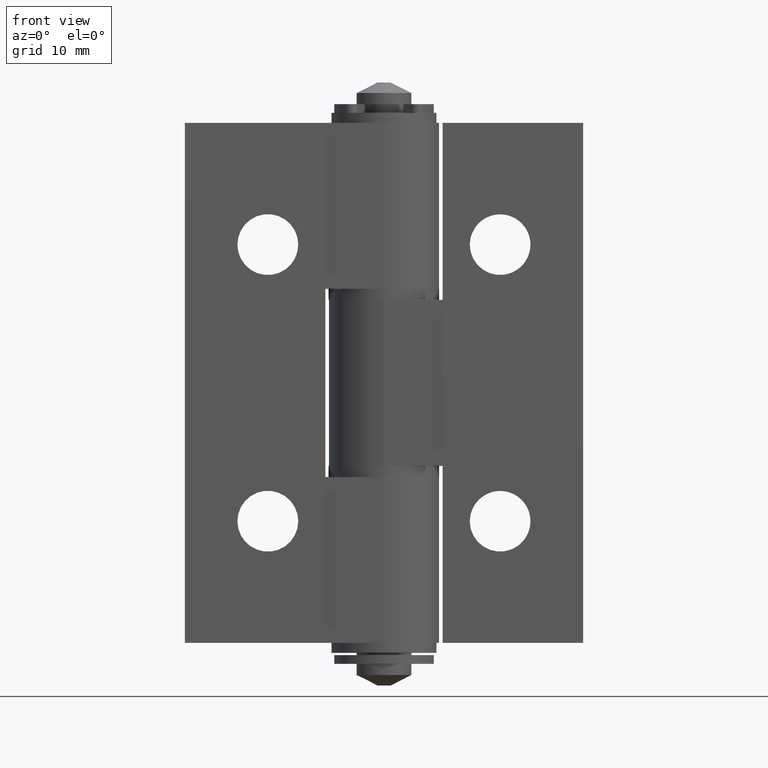
[diagram: clean part render]
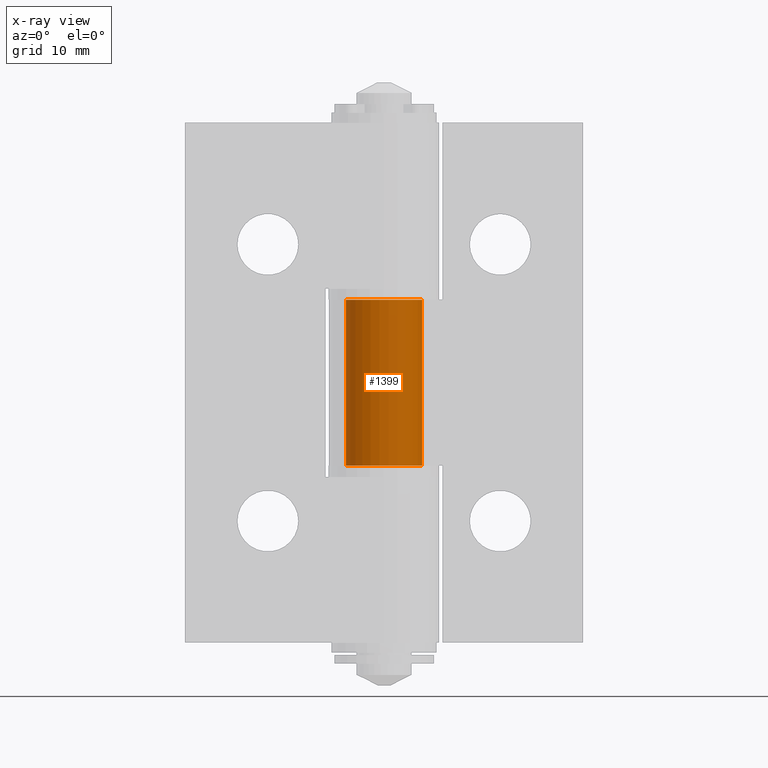
[diagram: x-ray — body ghosted, one internal face saturated and labeled with its STEP entity id]
A machine part, front view, then the same camera in x-ray: the body is ghosted and one INTERNAL B-rep face — a face not visible from any outside direction — is saturated and labeled: STEP entity #1399.
In plain terms, the highlighted cylindrical surface (bore or boss wall) has radius 3.45 mm, axis along (0, 0, 1).
Its self-contained STEP definition (entity closure, byte-faithful):
#93=CYLINDRICAL_SURFACE('',#1519,3.45);
#137=FACE_BOUND('',#287,.T.);
#182=FACE_OUTER_BOUND('',#286,.T.);
#286=EDGE_LOOP('',(#1104));
#287=EDGE_LOOP('',(#1105));
#370=CIRCLE('',#1497,3.45);
#372=CIRCLE('',#1500,3.45);
#677=VERTEX_POINT('',#2197);
#682=VERTEX_POINT('',#2208);
#820=EDGE_CURVE('',#677,#677,#370,.T.);
#825=EDGE_CURVE('',#682,#682,#372,.T.);
#1104=ORIENTED_EDGE('',*,*,#820,.T.);
#1105=ORIENTED_EDGE('',*,*,#825,.T.);
#1399=ADVANCED_FACE('',(#182,#137),#93,.F.);
#1497=AXIS2_PLACEMENT_3D('',#2198,#1742,#1743);
#1500=AXIS2_PLACEMENT_3D('',#2209,#1751,#1752);
#1519=AXIS2_PLACEMENT_3D('',#2267,#1805,#1806);
#1742=DIRECTION('center_axis',(0.,0.,-1.));
#1743=DIRECTION('ref_axis',(-1.,0.,0.));
#1751=DIRECTION('center_axis',(0.,0.,1.));
#1752=DIRECTION('ref_axis',(-1.,0.,0.));
#1805=DIRECTION('center_axis',(0.,0.,1.));
#1806=DIRECTION('ref_axis',(-1.,0.,0.));
#2197=CARTESIAN_POINT('',(3.45,-4.22503145705837E-16,-7.5));
#2198=CARTESIAN_POINT('Origin',(0.,0.,-7.5));
#2208=CARTESIAN_POINT('',(3.45,4.22503145705837E-16,7.5));
#2209=CARTESIAN_POINT('Origin',(0.,0.,7.5));
#2267=CARTESIAN_POINT('Origin',(0.,0.,0.));